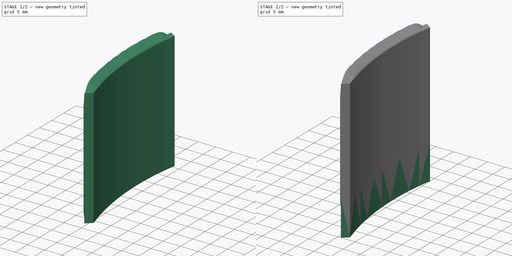
[diagram: build sequence overview — one tinted view per stage of 2, left to right]
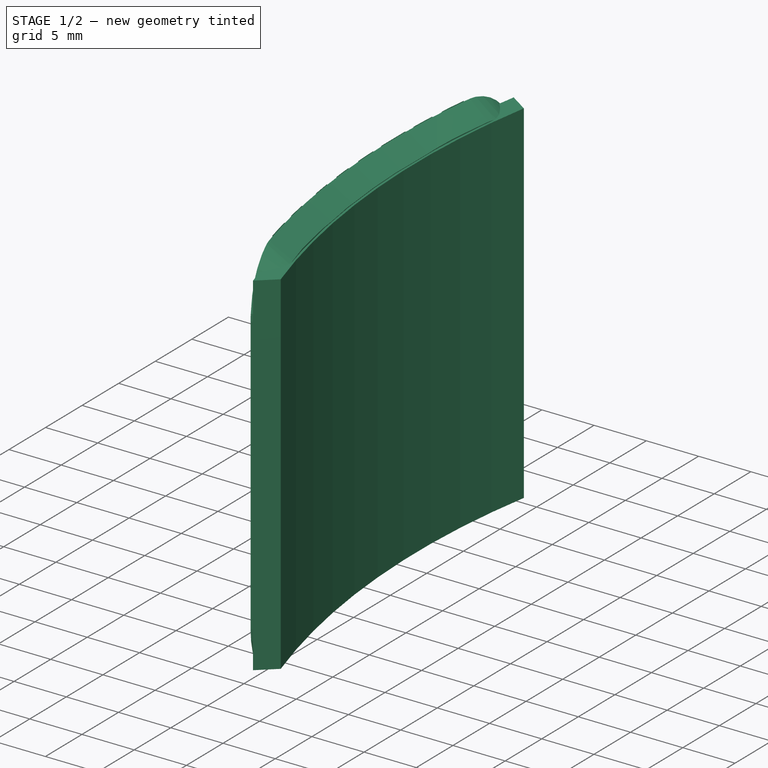
[diagram: stage 1 of 2 — iso view after this stage's code; geometry added in this stage tinted green]
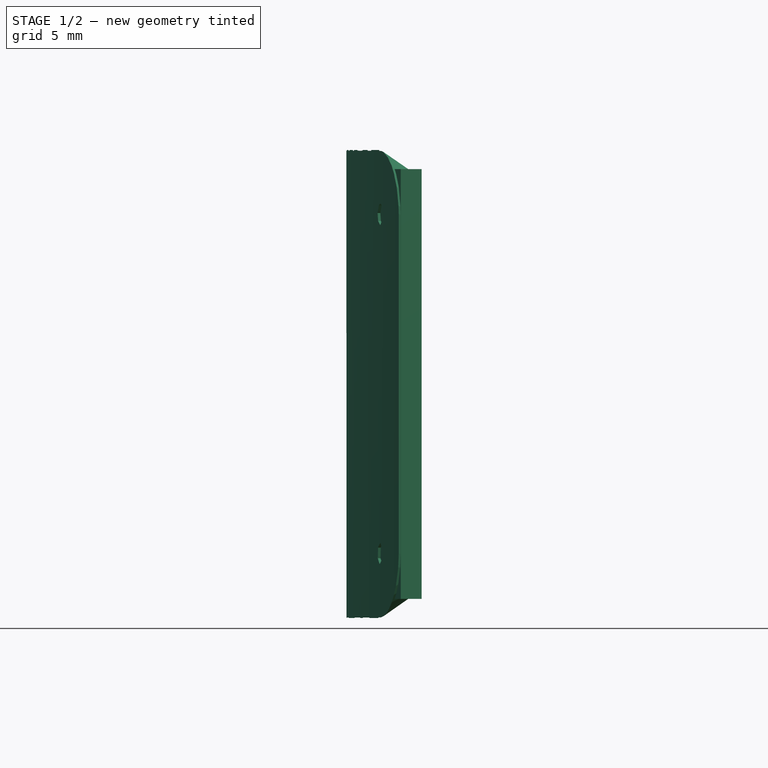
[diagram: stage 1 of 2 — front view after this stage's code; geometry added in this stage tinted green]
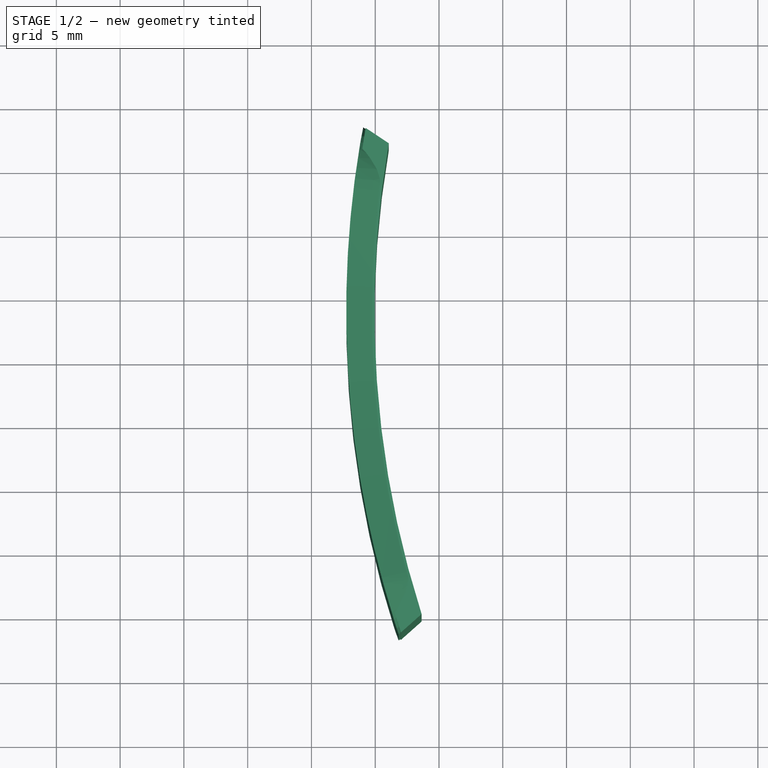
[diagram: stage 1 of 2 — top view after this stage's code; geometry added in this stage tinted green]
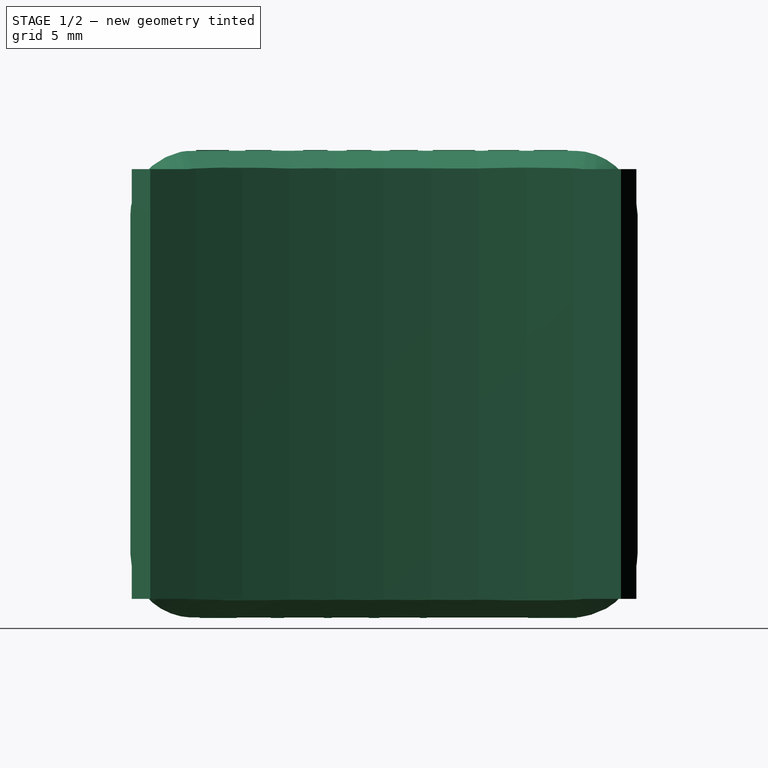
[diagram: stage 1 of 2 — right view after this stage's code; geometry added in this stage tinted green]
FCSTD DOCUMENT  (FreeCAD 0.22R38314 (Git))
Label: test
License: All rights reserved
LicenseURL: http://en.wikipedia.org/wiki/All_rights_reserved
objects: Sketcher::SketchObject×2, PartDesign::Pad×2, PartDesign::Body×2, Part::Feature×1, PartDesign::FeatureBase×1
note: 13 computed .brp shape members not serialized (recipe doc carries the construction recipe); baked Part::Feature solids carry a one-line shape summary decoded from their .brp

FEATURE [Part::Feature] Part__Feature  label="first_filler_for_uke002 (Solid).0"
  shape: bbox 5.722 x 39.77 x 36.69 mm, 1104 faces, 0 solids (baked)
FEATURE [PartDesign::FeatureBase] BaseFeature
  BaseFeature = -> Part__Feature
  Suppressed = false
FEATURE [PartDesign::Body] Body
  AllowCompound = false
  BaseFeature = -> Part__Feature
  Group = -> [BaseFeature,Sketch,Pad]
  Origin = -> Origin
  Tip = -> Pad
FEATURE [Sketcher::SketchObject] Sketch001
  AttachmentOffset = pos=(0,0,6.7) rot=(0,0,1;0rad)
  AttachmentSupport = -> [XY_Plane001]
  FullyConstrained = true
  MapMode = 5
  Placement = pos=(0,0,6.7) rot=(0,0,1;0rad)
  sketch-geometry (6):
    g0: ArcOfCircle CenterX=-27.06 CenterY=-26.44 CenterZ=0 NormalX=0 NormalY=0 NormalZ=1 AngleXU=0 Radius=78 StartAngle=2.97177 EndAngle=3.45069
    g1: ArcOfCircle CenterX=-27.06 CenterY=-26.44 CenterZ=0 NormalX=0 NormalY=0 NormalZ=1 AngleXU=0 Radius=80 StartAngle=2.9607 EndAngle=3.46177
    g2: LineSegment StartX=-105.755 StartY=-12.0472 StartZ=0 EndX=-103.938 EndY=-13.2574 EndZ=0
    g3: LineSegment StartX=-101.363 StartY=-50.1677 StartZ=0 EndX=-102.994 EndY=-51.6184 EndZ=0
    g4: GeomPoint X=-102.651 Y=-31.7126 Z=0
    g5: LineSegment StartX=-27.06 StartY=-26.44 StartZ=0 EndX=-120.82 EndY=-32.9799 EndZ=0
  constraints (17):
    c: DistanceX(g0) = -27.06
    c: DistanceY(g0,g-1) = 26.44
    c: Radius(g0) = 78
    c: Coincident(g1,g0)
    c: Radius(g1) = 80
    c: Coincident(g2,g1)
    c: Coincident(g2,g0)
    c: Coincident(g3,g0)
    c: Coincident(g3,g1)
    c: Symmetric(g0,g0,g4)
    c: Coincident(g5,g0)
    c: PointOnObject(g4,g5)
    c: DistanceX(g5,g5) = 93.76
    c: Equal(g3,g2)
    c: Angle(g3,g5) = 2.4843
    c: Distance(g0,g0) = 37
    c: Angle(g-1,g5) = 0.0696386
FEATURE [PartDesign::Pad] Pad001
  Direction = (0,0,1)
  Length = 33.7
  Length2 = 10
  Profile = -> Sketch001
  ReferenceAxis = -> Sketch001 [N_Axis]
  Suppressed = false
  Type = 0
FEATURE [PartDesign::Body] Body001
  AllowCompound = false
  Group = -> [Sketch001,Pad001]
  Origin = -> Origin001
  Tip = -> Pad001
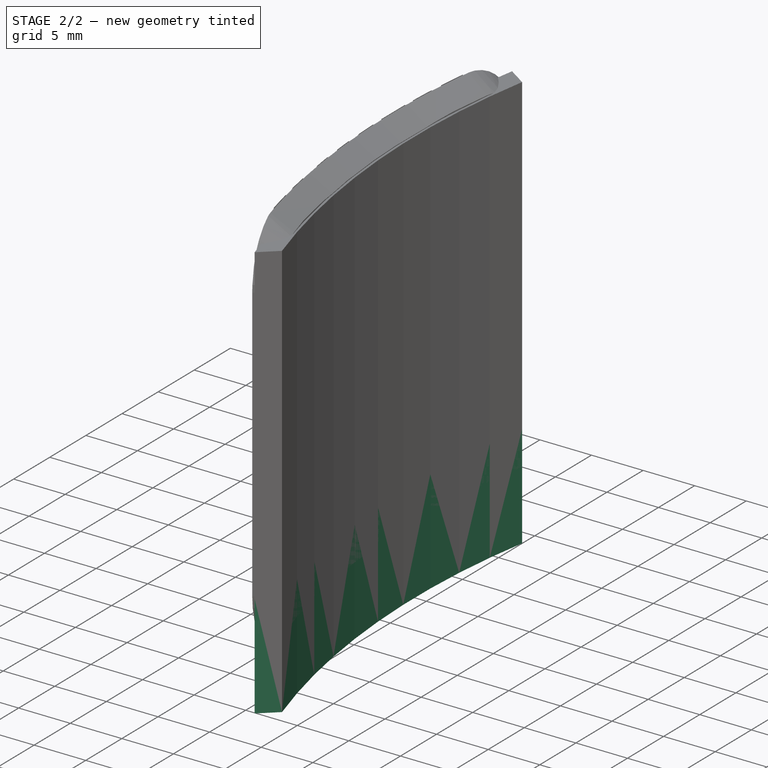
[diagram: stage 2 of 2 — iso view after this stage's code; geometry added in this stage tinted green]
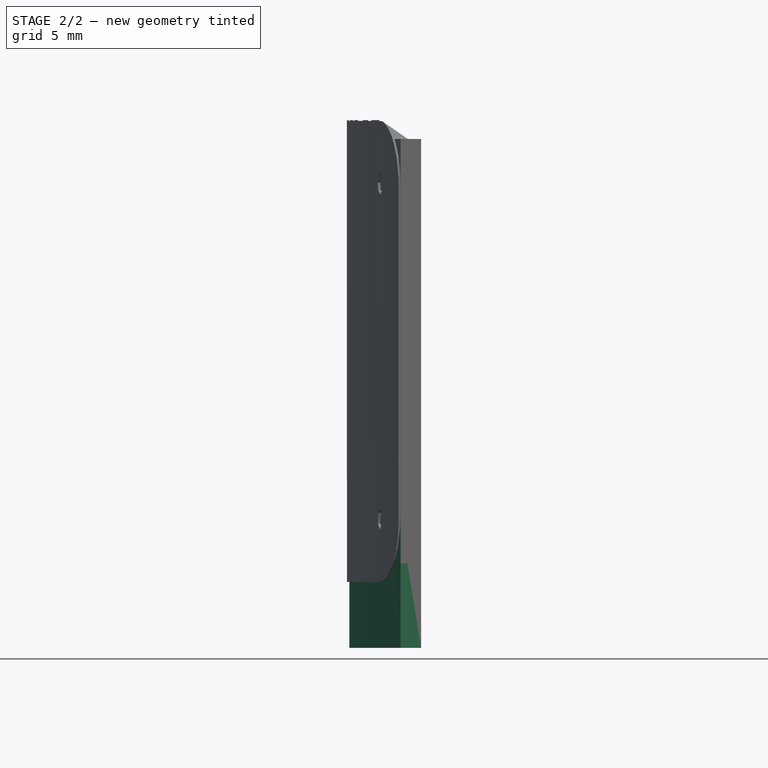
[diagram: stage 2 of 2 — front view after this stage's code; geometry added in this stage tinted green]
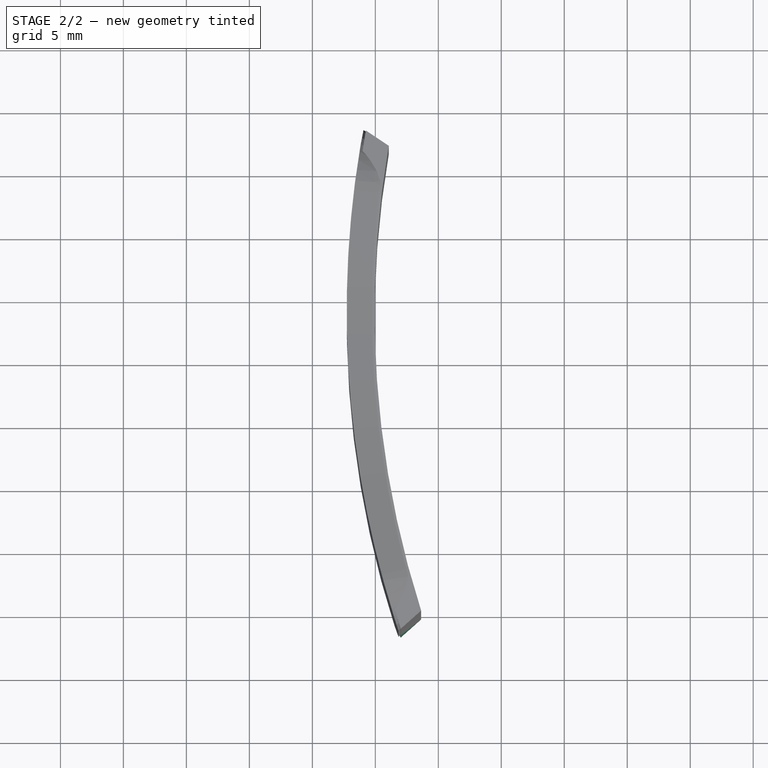
[diagram: stage 2 of 2 — top view after this stage's code; geometry added in this stage tinted green]
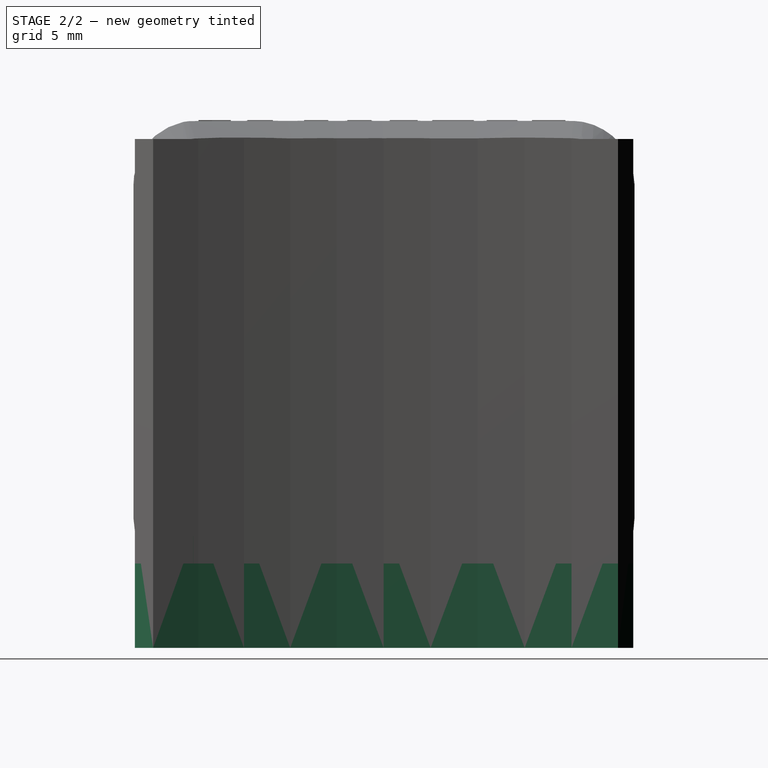
[diagram: stage 2 of 2 — right view after this stage's code; geometry added in this stage tinted green]
FEATURE [Sketcher::SketchObject] Sketch
  AttachmentSupport = -> [XY_Plane]
  FullyConstrained = true
  MapMode = 5
  sketch-geometry (6):
    g0: ArcOfCircle CenterX=-27.06 CenterY=-26.44 CenterZ=0 NormalX=0 NormalY=0 NormalZ=1 AngleXU=0 Radius=78 StartAngle=2.97177 EndAngle=3.45069
    g1: ArcOfCircle CenterX=-27.06 CenterY=-26.44 CenterZ=0 NormalX=0 NormalY=0 NormalZ=1 AngleXU=0 Radius=80 StartAngle=2.9607 EndAngle=3.46177
    g2: LineSegment StartX=-105.755 StartY=-12.0472 StartZ=0 EndX=-103.938 EndY=-13.2574 EndZ=0
    g3: LineSegment StartX=-101.363 StartY=-50.1677 StartZ=0 EndX=-102.994 EndY=-51.6184 EndZ=0
    g4: GeomPoint X=-102.651 Y=-31.7126 Z=0
    g5: LineSegment StartX=-27.06 StartY=-26.44 StartZ=0 EndX=-120.82 EndY=-32.9799 EndZ=0
  constraints (17):
    c: DistanceX(g0) = -27.06
    c: DistanceY(g0,g-1) = 26.44
    c: Radius(g0) = 78
    c: Coincident(g1,g0)
    c: Radius(g1) = 80
    c: Coincident(g2,g1)
    c: Coincident(g2,g0)
    c: Coincident(g3,g0)
    c: Coincident(g3,g1)
    c: Symmetric(g0,g0,g4)
    c: Coincident(g5,g0)
    c: PointOnObject(g4,g5)
    c: DistanceX(g5,g5) = 93.76
    c: Equal(g3,g2)
    c: Angle(g3,g5) = 2.4843
    c: Distance(g0,g0) = 37
    c: Angle(g-1,g5) = 0.0696386
FEATURE [PartDesign::Pad] Pad
  BaseFeature = -> BaseFeature
  Direction = (0,0,1)
  Length = 10
  Length2 = 10
  Profile = -> Sketch
  ReferenceAxis = -> Sketch [N_Axis]
  Suppressed = false
  Type = 0
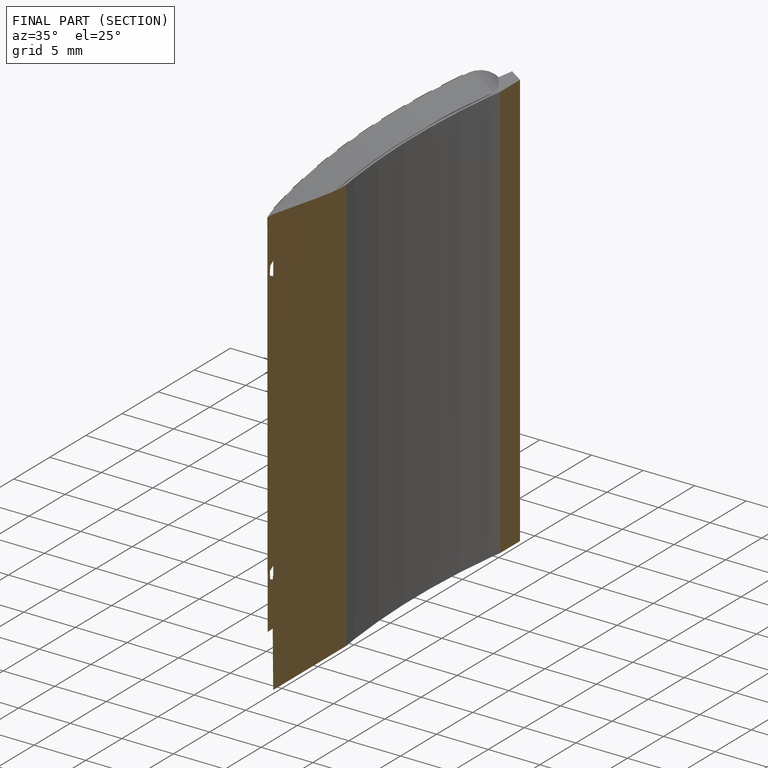
[diagram: finished part — half-section view (interior)]
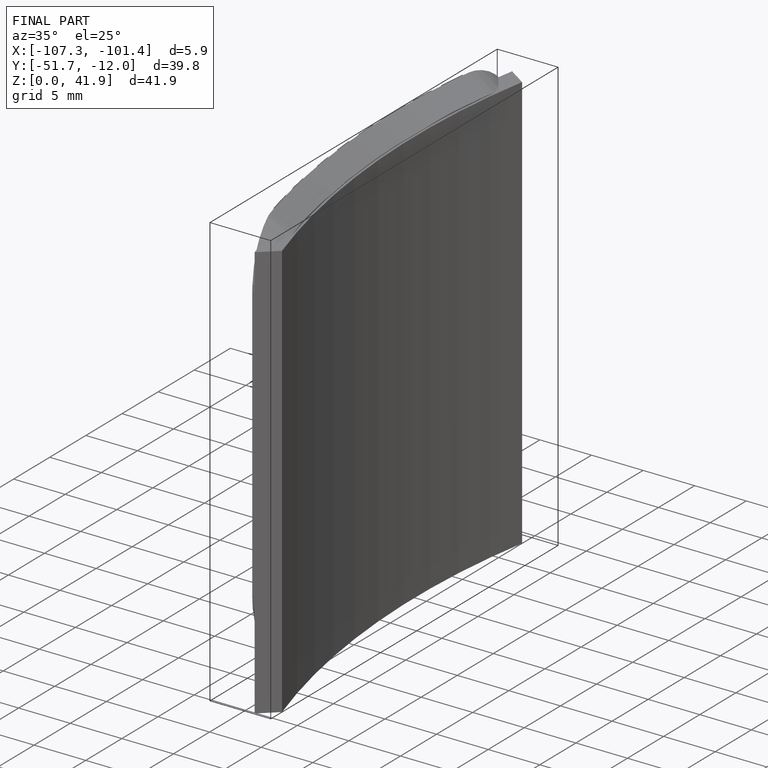
[diagram: finished part — iso view with bounding-box wireframe]
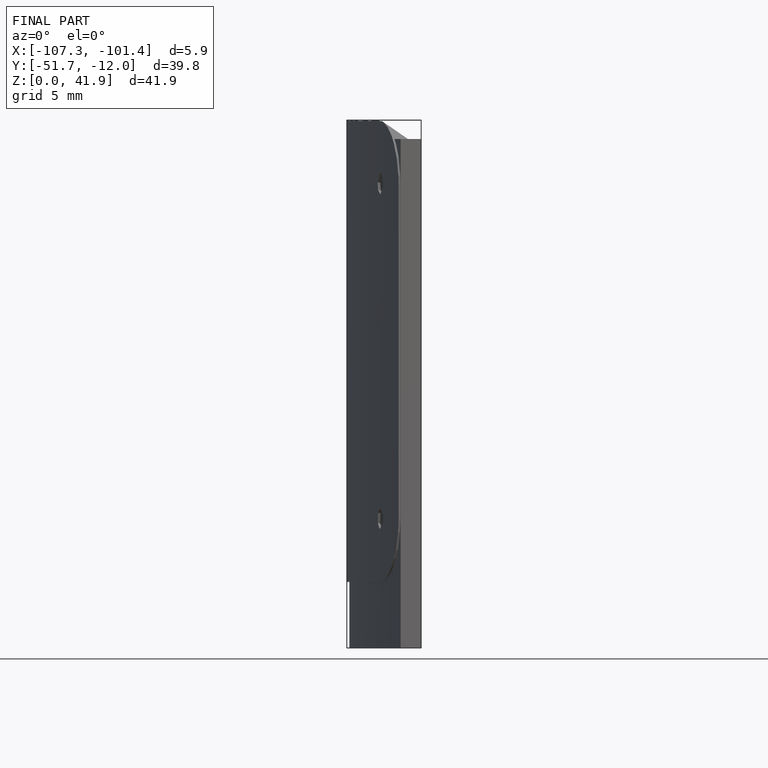
[diagram: finished part — front view with bounding-box wireframe]
